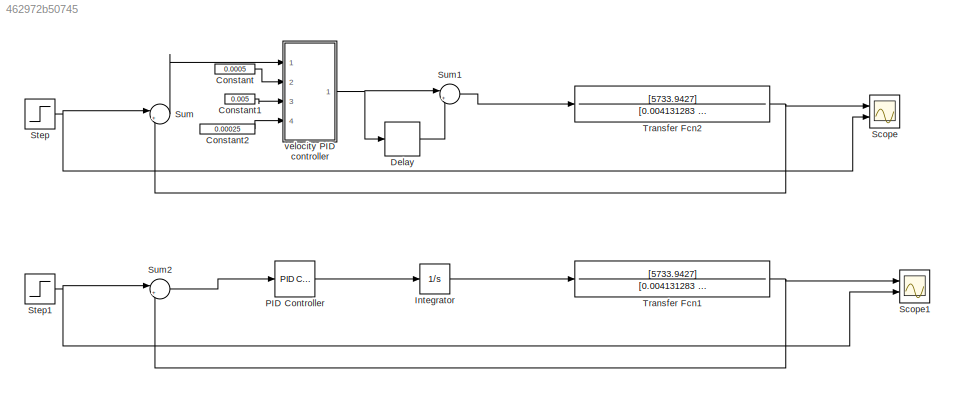
MODEL slx_462972b50745
KIND model
CONFIG AbsTol = auto
CONFIG FixedStep = 0.002
CONFIG MaxStep = auto
CONFIG MinStep = auto
CONFIG RelTol = 1e-3
CONFIG SampleTimeConstraint = Unconstrained
CONFIG Solver = FixedStepAuto
CONFIG SolverMode = Auto
CONFIG SolverName = FixedStepAuto
CONFIG StartTime = 0.0
CONFIG StopTime = 10.0
BLOCK [Constant] Constant
  Value = 0.0005
BLOCK [Constant] Constant1
  Value = 0.005
BLOCK [Constant] Constant2
  Value = 0.00025
BLOCK [Delay] Delay
  DelayLength = 1
  InitialCondition = 0
  InputPortMap = u0
  Ports = [1, 1]
BLOCK [Integrator] Integrator
  Ports = [1, 1]
BLOCK [Reference] PID Controller  REF=simulink/Continuous/PID Controller
  Ports = [1, 1]
  SourceBlock = simulink/Continuous/PID Controller
  SourceType = PID 1dof
BLOCK [Scope] Scope
  NumInputPorts = 2
  Ports = [2]
  ScopeSpecificationString = Simulink.scopes.TimeScopeBlockCfg('CurrentConfiguration', extmgr.ConfigurationSet(extmgr.Configuration('Core','General UI',true),extmgr.Configuration('Core','Source UI',true),extmgr.Configuration('Sources','WiredSimulink',true),extmgr.Configuration('Visuals','Time Domain',true,'SerializedDisplays',{struct('MinYLimReal','-0.16505','MaxYLimReal','1.48545','YLabelReal','','MinYLimMag','0.00000','MaxY...<+1384ch>
BLOCK [Scope] Scope1
  NumInputPorts = 2
  Ports = [2]
  ScopeSpecificationString = Simulink.scopes.TimeScopeBlockCfg('CurrentConfiguration', extmgr.ConfigurationSet(extmgr.Configuration('Core','General UI',true),extmgr.Configuration('Core','Source UI',true),extmgr.Configuration('Sources','WiredSimulink',true,'DataLoggingVariableName','ScopeData1'),extmgr.Configuration('Visuals','Time Domain',true,'SerializedDisplays',{struct('MinYLimReal','-0.14211','MaxYLimReal','1.279','YLabel...<+1446ch>
BLOCK [Step] Step
  SampleTime = 0
BLOCK [Step] Step1
  SampleTime = 0
BLOCK [Sum] Sum
  IconShape = round
  InputSameDT = off
  Inputs = |+-
  OutDataTypeStr = Inherit: Inherit via internal rule
  Ports = [2, 1]
  SaturateOnIntegerOverflow = off
BLOCK [Sum] Sum1
  IconShape = round
  InputSameDT = off
  Inputs = |++
  OutDataTypeStr = Inherit: Inherit via internal rule
  Ports = [2, 1]
  SaturateOnIntegerOverflow = off
BLOCK [Sum] Sum2
  IconShape = round
  InputSameDT = off
  Inputs = |+-
  OutDataTypeStr = Inherit: Inherit via internal rule
  Ports = [2, 1]
  SaturateOnIntegerOverflow = off
BLOCK [TransferFcn] Transfer Fcn1
  Denominator = [0.004131283  0.15629 1]
  Numerator = [5733.9427]
BLOCK [TransferFcn] Transfer Fcn2
  Denominator = [0.004131283  0.15629 1]
  Numerator = [5733.9427]
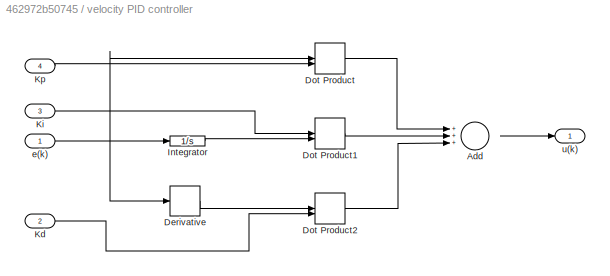
BLOCK [SubSystem] velocity PID controller 
  Ports = [4, 1]
  RequestExecContextInheritance = off
  Variant = off
BLOCK [Sum] velocity PID controller /Add
  InputSameDT = off
  Inputs = +++
  OutDataTypeStr = Inherit: Inherit via internal rule
  Ports = [3, 1]
  SaturateOnIntegerOverflow = off
BLOCK [Derivative] velocity PID controller /Derivative
BLOCK [DotProduct] velocity PID controller /Dot Product
  OutDataTypeStr = Inherit: Inherit via internal rule
BLOCK [DotProduct] velocity PID controller /Dot Product1
  OutDataTypeStr = Inherit: Inherit via internal rule
BLOCK [DotProduct] velocity PID controller /Dot Product2
  OutDataTypeStr = Inherit: Inherit via internal rule
BLOCK [Integrator] velocity PID controller /Integrator
  Ports = [1, 1]
BLOCK [Inport] velocity PID controller /Kd 
  IconDisplay = Port number
  Port = 2
BLOCK [Inport] velocity PID controller /Ki 
  IconDisplay = Port number
  Port = 3
BLOCK [Inport] velocity PID controller /Kp 
  IconDisplay = Port number
  Port = 4
BLOCK [Inport] velocity PID controller /e(k)
  IconDisplay = Port number
BLOCK [Outport] velocity PID controller /u(k)
  IconDisplay = Port number
LINE Constant1:1 -> velocity PID controller :3
LINE Constant2:1 -> velocity PID controller :4
LINE Constant:1 -> velocity PID controller :2
LINE Delay:1 -> Sum1:2
LINE Integrator:1 -> Transfer Fcn1:1
LINE PID Controller:1 -> Integrator:1
NET Step1:1 -> Scope1:2, Sum2:1
NET Step:1 -> Scope:2, Sum:1
LINE Sum1:1 -> Transfer Fcn2:1
LINE Sum2:1 -> PID Controller:1
LINE Sum:1 -> velocity PID controller :1
NET Transfer Fcn1:1 -> Scope1:1, Sum2:2
NET Transfer Fcn2:1 -> Scope:1, Sum:2
LINE velocity PID controller /Add:1 -> velocity PID controller /u(k):1
LINE velocity PID controller /Derivative:1 -> velocity PID controller /Dot Product2:1
LINE velocity PID controller /Dot Product1:1 -> velocity PID controller /Add:2
LINE velocity PID controller /Dot Product2:1 -> velocity PID controller /Add:3
LINE velocity PID controller /Dot Product:1 -> velocity PID controller /Add:1
LINE velocity PID controller /Integrator:1 -> velocity PID controller /Dot Product1:2
LINE velocity PID controller /Kd :1 -> velocity PID controller /Dot Product2:2
LINE velocity PID controller /Ki :1 -> velocity PID controller /Dot Product1:1
LINE velocity PID controller /Kp :1 -> velocity PID controller /Dot Product:2
NET velocity PID controller /e(k):1 -> velocity PID controller /Derivative:1, velocity PID controller /Dot Product:1, velocity PID controller /Integrator:1
NET velocity PID controller :1 -> Delay:1, Sum1:1
note: NET lines group one-source signal fan-out (src -> all destinations, sorted); 1:1 wires keep LINE
